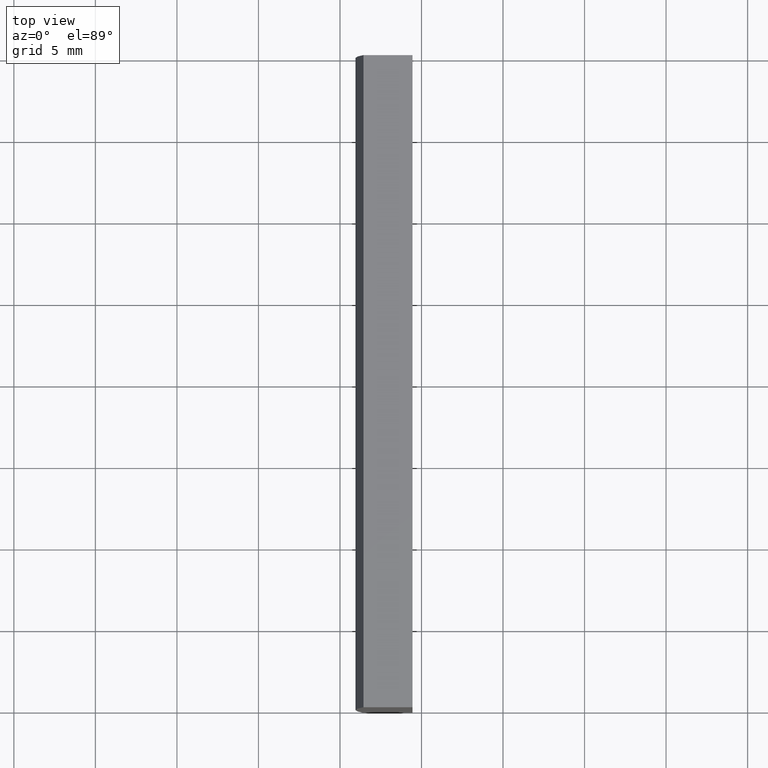
[diagram: clean part render]
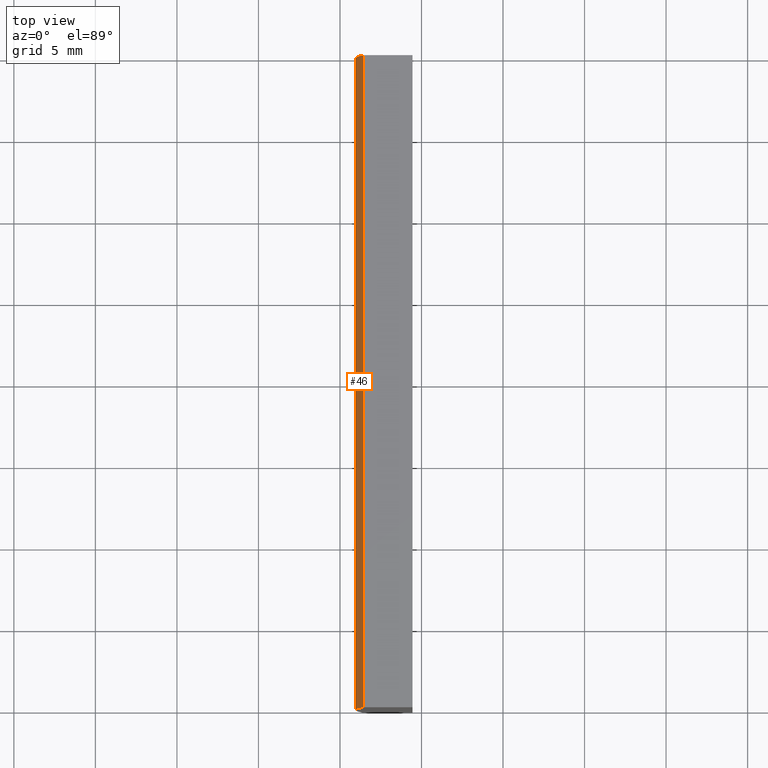
[diagram: same view with one face highlighted and labeled with its STEP entity id]
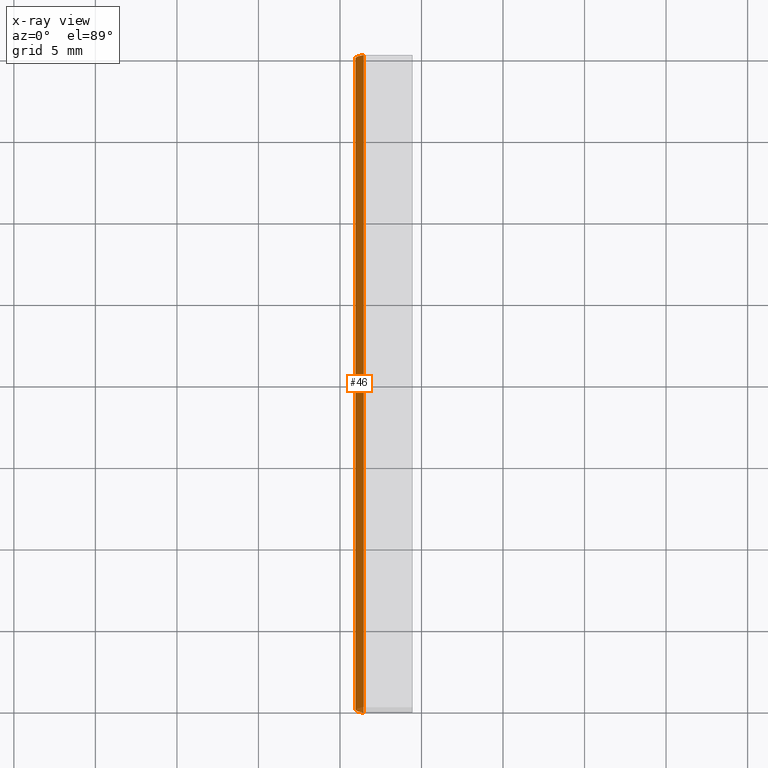
[diagram: x-ray of the same camera — body ghosted, the highlighted face saturated]
A machine part, top view. The second image highlights one B-rep face of the part: STEP entity #46.
The next image is the same camera in x-ray: the body ghosted, the highlighted face saturated — about 0% of this face is hidden behind the body in this view.
In plain terms, the highlighted cylindrical surface (partial cylindrical patch) has radius 103.4 mm, axis along (-0, -1, -0).
Its self-contained STEP definition (entity closure, byte-faithful):
#1 = EDGE_CURVE ( 'NONE', #152, #96, #70, .T. ) ;
#27 = VECTOR ( 'NONE', #107, 1000.000000000000000 ) ;
#30 = AXIS2_PLACEMENT_3D ( 'NONE', #157, #176, #111 ) ;
#38 = CARTESIAN_POINT ( 'NONE',  ( -98.56010064939296500, 40.00000000000000000, 10.00000000000000000 ) ) ;
#42 = EDGE_LOOP ( 'NONE', ( #51, #182, #108, #72 ) ) ;
#46 = ADVANCED_FACE ( 'NONE', ( #55 ), #144, .T. ) ;
#49 = LINE ( 'NONE', #110, #100 ) ;
#51 = ORIENTED_EDGE ( 'NONE', *, *, #1, .T. ) ;
#54 = DIRECTION ( 'NONE',  ( -0.0000000000000000000, -1.000000000000000000, -0.0000000000000000000 ) ) ;
#55 = FACE_OUTER_BOUND ( 'NONE', #42, .T. ) ;
#56 = DIRECTION ( 'NONE',  ( 0.0000000000000000000, 0.0000000000000000000, 1.000000000000000000 ) ) ;
#70 = CIRCLE ( 'NONE', #30, 103.4000000000000200 ) ;
#72 = ORIENTED_EDGE ( 'NONE', *, *, #142, .T. ) ;
#76 = LINE ( 'NONE', #127, #27 ) ;
#86 = AXIS2_PLACEMENT_3D ( 'NONE', #183, #109, #177 ) ;
#93 = CARTESIAN_POINT ( 'NONE',  ( -98.56010064939296500, 0.0000000000000000000, 10.00000000000000000 ) ) ;
#96 = VERTEX_POINT ( 'NONE', #93 ) ;
#99 = EDGE_CURVE ( 'NONE', #172, #171, #139, .T. ) ;
#100 = VECTOR ( 'NONE', #54, 1000.000000000000000 ) ;
#107 = DIRECTION ( 'NONE',  ( -0.0000000000000000000, -1.000000000000000000, -0.0000000000000000000 ) ) ;
#108 = ORIENTED_EDGE ( 'NONE', *, *, #99, .F. ) ;
#109 = DIRECTION ( 'NONE',  ( -0.0000000000000000000, -1.000000000000000000, -0.0000000000000000000 ) ) ;
#110 = CARTESIAN_POINT ( 'NONE',  ( -98.56010064939295000, 40.00000000000000000, -10.00000000000000000 ) ) ;
#111 = DIRECTION ( 'NONE',  ( 0.0000000000000000000, 0.0000000000000000000, 1.000000000000000000 ) ) ;
#118 = CARTESIAN_POINT ( 'NONE',  ( 4.355204334851265500, 40.00000000000000000, 4.286263797015675000E-017 ) ) ;
#127 = CARTESIAN_POINT ( 'NONE',  ( -98.56010064939296500, 40.00000000000000000, 10.00000000000000000 ) ) ;
#135 = AXIS2_PLACEMENT_3D ( 'NONE', #118, #196, #56 ) ;
#139 = CIRCLE ( 'NONE', #135, 103.4000000000000200 ) ;
#142 = EDGE_CURVE ( 'NONE', #172, #152, #49, .T. ) ;
#144 = CYLINDRICAL_SURFACE ( 'NONE', #86, 103.4000000000000200 ) ;
#152 = VERTEX_POINT ( 'NONE', #200 ) ;
#157 = CARTESIAN_POINT ( 'NONE',  ( 4.355204334851265500, 0.0000000000000000000, 4.286263797015675000E-017 ) ) ;
#171 = VERTEX_POINT ( 'NONE', #38 ) ;
#172 = VERTEX_POINT ( 'NONE', #184 ) ;
#176 = DIRECTION ( 'NONE',  ( 0.0000000000000000000, 1.000000000000000000, 0.0000000000000000000 ) ) ;
#177 = DIRECTION ( 'NONE',  ( 0.0000000000000000000, 0.0000000000000000000, -1.000000000000000000 ) ) ;
#182 = ORIENTED_EDGE ( 'NONE', *, *, #190, .F. ) ;
#183 = CARTESIAN_POINT ( 'NONE',  ( 4.355204334851265500, 40.00000000000000000, 4.286263797015675000E-017 ) ) ;
#184 = CARTESIAN_POINT ( 'NONE',  ( -98.56010064939295000, 40.00000000000000000, -10.00000000000000000 ) ) ;
#190 = EDGE_CURVE ( 'NONE', #171, #96, #76, .T. ) ;
#196 = DIRECTION ( 'NONE',  ( 0.0000000000000000000, 1.000000000000000000, 0.0000000000000000000 ) ) ;
#200 = CARTESIAN_POINT ( 'NONE',  ( -98.56010064939295000, 0.0000000000000000000, -10.00000000000000000 ) ) ;